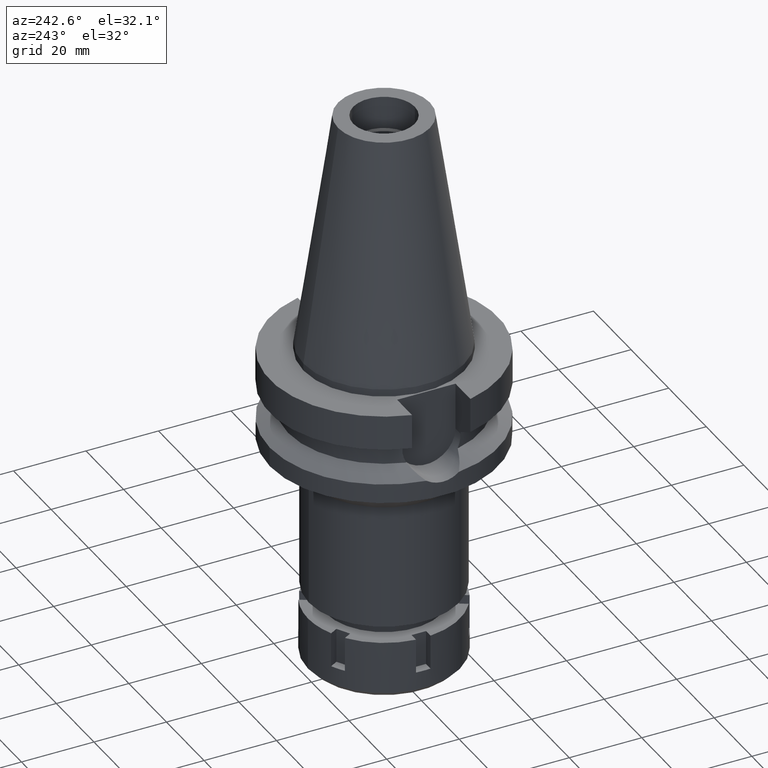
[diagram: clean part render]
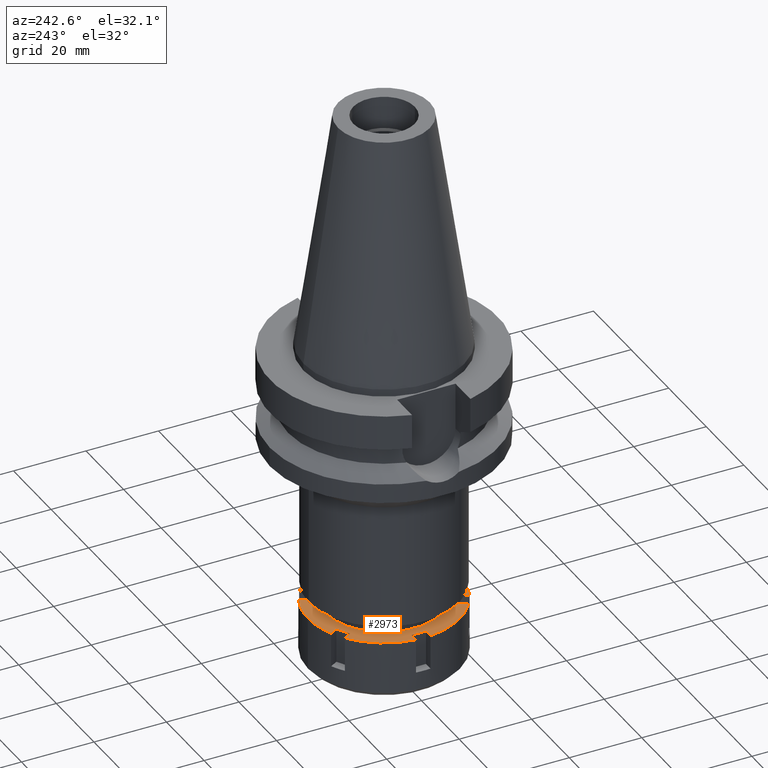
[diagram: same view with one face highlighted and labeled with its STEP entity id]
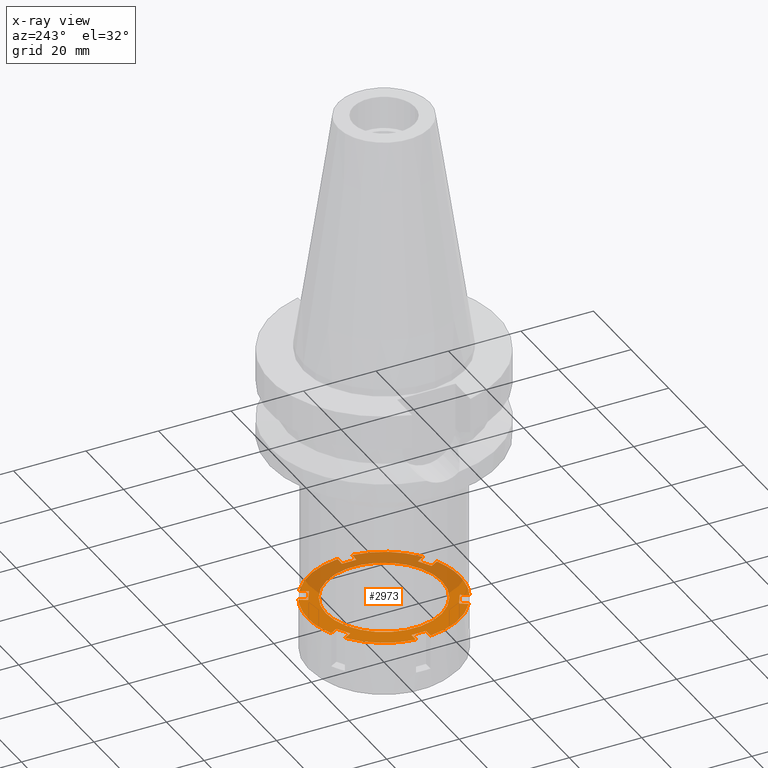
[diagram: x-ray of the same camera — body ghosted, the highlighted face saturated]
A machine part, auxiliary view. The second image highlights one B-rep face of the part: STEP entity #2973.
The next image is the same camera in x-ray: the body ghosted, the highlighted face saturated — about 43% of this face is hidden behind the body in this view.
In plain terms, the highlighted planar face has unit normal (0, 0, -1).
Its self-contained STEP definition (entity closure, byte-faithful):
#2 = LINE ( 'NONE', #493, #2213 ) ;
#9 = DIRECTION ( 'NONE',  ( -0.8660254037844541397, -0.4999999999999731326, 0.0000000000000000000 ) ) ;
#16 = CARTESIAN_POINT ( 'NONE',  ( -8.720221672615000585, -19.10386699022999935, 0.0000000000000000000 ) ) ;
#35 = VECTOR ( 'NONE', #3082, 1000.000000000000114 ) ;
#36 = EDGE_CURVE ( 'NONE', #1944, #2217, #3201, .T. ) ;
#58 = DIRECTION ( 'NONE',  ( 0.5000000000000169864, 0.8660254037844288266, 0.0000000000000000000 ) ) ;
#83 = EDGE_CURVE ( 'NONE', #3198, #2661, #1051, .T. ) ;
#91 = ORIENTED_EDGE ( 'NONE', *, *, #1835, .F. ) ;
#96 = CIRCLE ( 'NONE', #620, 21.00000000000000711 ) ;
#98 = EDGE_CURVE ( 'NONE', #2619, #3386, #301, .T. ) ;
#100 = CARTESIAN_POINT ( 'NONE',  ( 0.0000000000000000000, 0.0000000000000000000, 0.0000000000000000000 ) ) ;
#144 = CARTESIAN_POINT ( 'NONE',  ( -12.18432328774999895, 17.10386699022999935, 0.0000000000000000000 ) ) ;
#195 = DIRECTION ( 'NONE',  ( 0.0000000000000000000, 0.0000000000000000000, -1.000000000000000000 ) ) ;
#199 = CARTESIAN_POINT ( 'NONE',  ( -12.18432328774999895, -17.10386699022999935, 0.0000000000000000000 ) ) ;
#207 = DIRECTION ( 'NONE',  ( 0.0000000000000000000, 1.000000000000000000, 0.0000000000000000000 ) ) ;
#209 = CIRCLE ( 'NONE', #2578, 20.99999999999999645 ) ;
#287 = DIRECTION ( 'NONE',  ( 0.0000000000000000000, 0.0000000000000000000, -1.000000000000000000 ) ) ;
#299 = EDGE_CURVE ( 'NONE', #2487, #3056, #2763, .T. ) ;
#301 = LINE ( 'NONE', #1845, #1575 ) ;
#305 = CARTESIAN_POINT ( 'NONE',  ( 0.0000000000000000000, 0.0000000000000000000, 0.0000000000000000000 ) ) ;
#322 = DIRECTION ( 'NONE',  ( 0.0000000000000000000, -1.000000000000000000, 0.0000000000000000000 ) ) ;
#385 = VERTEX_POINT ( 'NONE', #2515 ) ;
#392 = DIRECTION ( 'NONE',  ( -0.4152486510768949035, 0.9097079519157886818, 0.0000000000000000000 ) ) ;
#409 = ORIENTED_EDGE ( 'NONE', *, *, #872, .F. ) ;
#425 = ORIENTED_EDGE ( 'NONE', *, *, #1021, .F. ) ;
#458 = ORIENTED_EDGE ( 'NONE', *, *, #660, .F. ) ;
#465 = CARTESIAN_POINT ( 'NONE',  ( 8.720221672615000585, 19.10386699022999935, 0.0000000000000000000 ) ) ;
#471 = DIRECTION ( 'NONE',  ( -1.000000000000000000, 4.090826397637000243E-14, 0.0000000000000000000 ) ) ;
#493 = CARTESIAN_POINT ( 'NONE',  ( 7.517949192430999794, -17.02146997000999917, 0.0000000000000000000 ) ) ;
#505 = EDGE_LOOP ( 'NONE', ( #91, #1543 ) ) ;
#533 = DIRECTION ( 'NONE',  ( -1.000000000000000000, -4.100060768738000191E-14, 0.0000000000000000000 ) ) ;
#559 = VECTOR ( 'NONE', #1813, 1000.000000000000114 ) ;
#564 = DIRECTION ( 'NONE',  ( 0.4999999999997049027, -0.8660254037846089048, 0.0000000000000000000 ) ) ;
#575 = CARTESIAN_POINT ( 'NONE',  ( -10.98205080757000118, 15.02146997001000095, 0.0000000000000000000 ) ) ;
#590 = DIRECTION ( 'NONE',  ( 0.0000000000000000000, 1.000000000000000000, 0.0000000000000000000 ) ) ;
#592 = ORIENTED_EDGE ( 'NONE', *, *, #2823, .F. ) ;
#608 = VERTEX_POINT ( 'NONE', #1655 ) ;
#620 = AXIS2_PLACEMENT_3D ( 'NONE', #1990, #3111, #3085 ) ;
#639 = EDGE_CURVE ( 'NONE', #1173, #2046, #1394, .T. ) ;
#660 = EDGE_CURVE ( 'NONE', #3525, #1653, #2639, .T. ) ;
#682 = CARTESIAN_POINT ( 'NONE',  ( -20.90454496036999998, 2.000000000000000000, 0.0000000000000000000 ) ) ;
#701 = CARTESIAN_POINT ( 'NONE',  ( 8.720221672615000585, 19.10386699022999935, 0.0000000000000000000 ) ) ;
#734 = VECTOR ( 'NONE', #564, 1000.000000000000114 ) ;
#743 = EDGE_CURVE ( 'NONE', #1214, #2856, #1233, .T. ) ;
#744 = CIRCLE ( 'NONE', #3008, 21.00000000000000000 ) ;
#754 = CARTESIAN_POINT ( 'NONE',  ( -18.50000000000000000, -2.000000000000000000, 0.0000000000000000000 ) ) ;
#765 = VERTEX_POINT ( 'NONE', #199 ) ;
#769 = CARTESIAN_POINT ( 'NONE',  ( 0.0000000000000000000, 16.00000000000000000, 0.0000000000000000000 ) ) ;
#800 = DIRECTION ( 'NONE',  ( 0.5000000000000169864, -0.8660254037844288266, 0.0000000000000000000 ) ) ;
#812 = DIRECTION ( 'NONE',  ( 0.0000000000000000000, 0.0000000000000000000, -1.000000000000000000 ) ) ;
#816 = DIRECTION ( 'NONE',  ( -0.5000000000000169864, 0.8660254037844288266, 0.0000000000000000000 ) ) ;
#827 = CARTESIAN_POINT ( 'NONE',  ( 0.0000000000000000000, -16.00000000000000000, 0.0000000000000000000 ) ) ;
#865 = ORIENTED_EDGE ( 'NONE', *, *, #1157, .F. ) ;
#870 = LINE ( 'NONE', #1987, #35 ) ;
#872 = EDGE_CURVE ( 'NONE', #2046, #970, #2, .T. ) ;
#881 = ORIENTED_EDGE ( 'NONE', *, *, #1426, .F. ) ;
#900 = VERTEX_POINT ( 'NONE', #769 ) ;
#921 = VERTEX_POINT ( 'NONE', #1611 ) ;
#932 = CARTESIAN_POINT ( 'NONE',  ( 18.50000000000000000, 2.000000000000000000, 0.0000000000000000000 ) ) ;
#935 = LINE ( 'NONE', #3376, #1424 ) ;
#942 = VERTEX_POINT ( 'NONE', #575 ) ;
#961 = CARTESIAN_POINT ( 'NONE',  ( 12.18432328774999895, 17.10386699022999935, 0.0000000000000000000 ) ) ;
#970 = VERTEX_POINT ( 'NONE', #2682 ) ;
#1021 = EDGE_CURVE ( 'NONE', #3056, #1214, #744, .T. ) ;
#1033 = CARTESIAN_POINT ( 'NONE',  ( 7.517949192430999794, 17.02146997000999917, 0.0000000000000000000 ) ) ;
#1036 = DIRECTION ( 'NONE',  ( 0.9954545219222313834, -0.09523809523810303213, 0.0000000000000000000 ) ) ;
#1051 = LINE ( 'NONE', #2440, #1299 ) ;
#1122 = ORIENTED_EDGE ( 'NONE', *, *, #2774, .F. ) ;
#1145 = VERTEX_POINT ( 'NONE', #1279 ) ;
#1154 = CARTESIAN_POINT ( 'NONE',  ( -10.98205080757000118, -15.02146997001000095, 0.0000000000000000000 ) ) ;
#1157 = EDGE_CURVE ( 'NONE', #2856, #1944, #935, .T. ) ;
#1170 = DIRECTION ( 'NONE',  ( -0.5000000000000169864, -0.8660254037844288266, 0.0000000000000000000 ) ) ;
#1173 = VERTEX_POINT ( 'NONE', #2890 ) ;
#1185 = CARTESIAN_POINT ( 'NONE',  ( 0.0000000000000000000, 0.0000000000000000000, 0.0000000000000000000 ) ) ;
#1214 = VERTEX_POINT ( 'NONE', #465 ) ;
#1215 = CARTESIAN_POINT ( 'NONE',  ( 18.50000000000000000, 2.000000000000000000, 0.0000000000000000000 ) ) ;
#1228 = CARTESIAN_POINT ( 'NONE',  ( 0.0000000000000000000, -21.00000000000000000, 0.0000000000000000000 ) ) ;
#1233 = LINE ( 'NONE', #701, #3068 ) ;
#1253 = VERTEX_POINT ( 'NONE', #1215 ) ;
#1263 = VERTEX_POINT ( 'NONE', #3123 ) ;
#1270 = FACE_BOUND ( 'NONE', #505, .T. ) ;
#1279 = CARTESIAN_POINT ( 'NONE',  ( -20.90454496036999998, -2.000000000000000000, 0.0000000000000000000 ) ) ;
#1299 = VECTOR ( 'NONE', #533, 1000.000000000000000 ) ;
#1302 = PLANE ( 'NONE',  #1912 ) ;
#1304 = AXIS2_PLACEMENT_3D ( 'NONE', #100, #2814, #392 ) ;
#1359 = VECTOR ( 'NONE', #1764, 1000.000000000000000 ) ;
#1372 = ORIENTED_EDGE ( 'NONE', *, *, #1481, .F. ) ;
#1389 = DIRECTION ( 'NONE',  ( 0.0000000000000000000, -1.000000000000000000, 0.0000000000000000000 ) ) ;
#1394 = LINE ( 'NONE', #1712, #2315 ) ;
#1424 = VECTOR ( 'NONE', #1786, 1000.000000000000114 ) ;
#1426 = EDGE_CURVE ( 'NONE', #765, #1145, #2128, .T. ) ;
#1438 = CARTESIAN_POINT ( 'NONE',  ( -7.517949192430999794, -17.02146997000999917, 0.0000000000000000000 ) ) ;
#1449 = VERTEX_POINT ( 'NONE', #827 ) ;
#1450 = LINE ( 'NONE', #2513, #734 ) ;
#1469 = ORIENTED_EDGE ( 'NONE', *, *, #1976, .T. ) ;
#1478 = EDGE_CURVE ( 'NONE', #1449, #900, #2595, .T. ) ;
#1481 = EDGE_CURVE ( 'NONE', #3481, #2223, #3014, .T. ) ;
#1488 = CARTESIAN_POINT ( 'NONE',  ( -18.50000000000000000, -2.000000000000000000, 0.0000000000000000000 ) ) ;
#1494 = EDGE_CURVE ( 'NONE', #2223, #608, #2190, .T. ) ;
#1543 = ORIENTED_EDGE ( 'NONE', *, *, #1478, .F. ) ;
#1564 = EDGE_CURVE ( 'NONE', #1653, #942, #1450, .T. ) ;
#1574 = ORIENTED_EDGE ( 'NONE', *, *, #1824, .T. ) ;
#1575 = VECTOR ( 'NONE', #1389, 1000.000000000000000 ) ;
#1578 = DIRECTION ( 'NONE',  ( 0.0000000000000000000, -1.000000000000000000, 0.0000000000000000000 ) ) ;
#1592 = ORIENTED_EDGE ( 'NONE', *, *, #743, .F. ) ;
#1611 = CARTESIAN_POINT ( 'NONE',  ( 12.18432328774999895, -17.10386699022999935, 0.0000000000000000000 ) ) ;
#1621 = CARTESIAN_POINT ( 'NONE',  ( -8.720221672615998898, -19.10386699022999935, 0.0000000000000000000 ) ) ;
#1643 = DIRECTION ( 'NONE',  ( 0.0000000000000000000, -1.000000000000000000, 0.0000000000000000000 ) ) ;
#1653 = VERTEX_POINT ( 'NONE', #144 ) ;
#1655 = CARTESIAN_POINT ( 'NONE',  ( -10.98205080757000118, -15.02146997001000095, 0.0000000000000000000 ) ) ;
#1659 = DIRECTION ( 'NONE',  ( -0.4999999999997049027, -0.8660254037846089048, 0.0000000000000000000 ) ) ;
#1702 = VECTOR ( 'NONE', #58, 1000.000000000000114 ) ;
#1712 = CARTESIAN_POINT ( 'NONE',  ( 10.98205080757000118, -15.02146997001000095, 0.0000000000000000000 ) ) ;
#1721 = ORIENTED_EDGE ( 'NONE', *, *, #1840, .T. ) ;
#1735 = EDGE_CURVE ( 'NONE', #1253, #385, #3428, .T. ) ;
#1764 = DIRECTION ( 'NONE',  ( 1.000000000000000000, 4.127763882039999760E-14, 0.0000000000000000000 ) ) ;
#1785 = DIRECTION ( 'NONE',  ( 1.000000000000000000, -3.989248315528999745E-14, 0.0000000000000000000 ) ) ;
#1786 = DIRECTION ( 'NONE',  ( 0.8660254037844541397, -0.4999999999999731326, 0.0000000000000000000 ) ) ;
#1811 = CARTESIAN_POINT ( 'NONE',  ( 0.0000000000000000000, 0.0000000000000000000, 0.0000000000000000000 ) ) ;
#1813 = DIRECTION ( 'NONE',  ( 0.8660254037844541397, 0.4999999999999731326, 0.0000000000000000000 ) ) ;
#1824 = EDGE_CURVE ( 'NONE', #3525, #2619, #2072, .T. ) ;
#1835 = EDGE_CURVE ( 'NONE', #900, #1449, #3350, .T. ) ;
#1840 = EDGE_CURVE ( 'NONE', #3386, #1145, #3393, .T. ) ;
#1845 = CARTESIAN_POINT ( 'NONE',  ( -18.50000000000000000, 2.000000000000000000, 0.0000000000000000000 ) ) ;
#1848 = ORIENTED_EDGE ( 'NONE', *, *, #2565, .F. ) ;
#1887 = LINE ( 'NONE', #1154, #2363 ) ;
#1889 = DIRECTION ( 'NONE',  ( -0.5802058708454290725, -0.8144698566776411575, 0.0000000000000000000 ) ) ;
#1912 = AXIS2_PLACEMENT_3D ( 'NONE', #2099, #3144, #1578 ) ;
#1916 = CARTESIAN_POINT ( 'NONE',  ( -18.50000000000000000, 2.000000000000000000, 0.0000000000000000000 ) ) ;
#1923 = DIRECTION ( 'NONE',  ( 0.0000000000000000000, 1.000000000000000000, 0.0000000000000000000 ) ) ;
#1944 = VERTEX_POINT ( 'NONE', #2229 ) ;
#1976 = EDGE_CURVE ( 'NONE', #2661, #1253, #3321, .T. ) ;
#1987 = CARTESIAN_POINT ( 'NONE',  ( 12.18432328774999895, -17.10386699022999935, 0.0000000000000000000 ) ) ;
#1990 = CARTESIAN_POINT ( 'NONE',  ( 0.0000000000000000000, 0.0000000000000000000, 0.0000000000000000000 ) ) ;
#2013 = EDGE_CURVE ( 'NONE', #608, #765, #1887, .T. ) ;
#2019 = AXIS2_PLACEMENT_3D ( 'NONE', #305, #3498, #322 ) ;
#2046 = VERTEX_POINT ( 'NONE', #2732 ) ;
#2048 = ORIENTED_EDGE ( 'NONE', *, *, #2592, .F. ) ;
#2050 = ORIENTED_EDGE ( 'NONE', *, *, #1564, .F. ) ;
#2072 = LINE ( 'NONE', #682, #1359 ) ;
#2099 = CARTESIAN_POINT ( 'NONE',  ( 0.0000000000000000000, 0.0000000000000000000, 0.0000000000000000000 ) ) ;
#2121 = CARTESIAN_POINT ( 'NONE',  ( 0.0000000000000000000, 0.0000000000000000000, 0.0000000000000000000 ) ) ;
#2123 = ORIENTED_EDGE ( 'NONE', *, *, #98, .T. ) ;
#2128 = CIRCLE ( 'NONE', #2945, 20.99999999999999645 ) ;
#2129 = VECTOR ( 'NONE', #2177, 1000.000000000000114 ) ;
#2159 = CARTESIAN_POINT ( 'NONE',  ( 0.0000000000000000000, 21.00000000000000000, 0.0000000000000000000 ) ) ;
#2165 = CARTESIAN_POINT ( 'NONE',  ( -8.720221672615000585, 19.10386699022999935, 0.0000000000000000000 ) ) ;
#2177 = DIRECTION ( 'NONE',  ( 0.4999999999997049027, 0.8660254037846089048, 0.0000000000000000000 ) ) ;
#2179 = ORIENTED_EDGE ( 'NONE', *, *, #3092, .F. ) ;
#2190 = LINE ( 'NONE', #1438, #3396 ) ;
#2193 = ORIENTED_EDGE ( 'NONE', *, *, #36, .F. ) ;
#2203 = DIRECTION ( 'NONE',  ( 0.5802058708454290725, 0.8144698566776411575, 0.0000000000000000000 ) ) ;
#2213 = VECTOR ( 'NONE', #800, 1000.000000000000114 ) ;
#2217 = VERTEX_POINT ( 'NONE', #961 ) ;
#2223 = VERTEX_POINT ( 'NONE', #2528 ) ;
#2228 = ORIENTED_EDGE ( 'NONE', *, *, #1735, .T. ) ;
#2229 = CARTESIAN_POINT ( 'NONE',  ( 10.98205080757000118, 15.02146997001000095, 0.0000000000000000000 ) ) ;
#2237 = CARTESIAN_POINT ( 'NONE',  ( 20.90454496036999998, -2.000000000000000000, 0.0000000000000000000 ) ) ;
#2270 = DIRECTION ( 'NONE',  ( -0.8660254037844541397, 0.4999999999999731326, 0.0000000000000000000 ) ) ;
#2294 = ORIENTED_EDGE ( 'NONE', *, *, #639, .F. ) ;
#2306 = CIRCLE ( 'NONE', #2019, 21.00000000000000000 ) ;
#2314 = VECTOR ( 'NONE', #1785, 1000.000000000000000 ) ;
#2315 = VECTOR ( 'NONE', #9, 1000.000000000000114 ) ;
#2335 = EDGE_CURVE ( 'NONE', #3198, #921, #2992, .T. ) ;
#2363 = VECTOR ( 'NONE', #1659, 1000.000000000000114 ) ;
#2382 = CARTESIAN_POINT ( 'NONE',  ( 0.0000000000000000000, 0.0000000000000000000, 0.0000000000000000000 ) ) ;
#2400 = ORIENTED_EDGE ( 'NONE', *, *, #1494, .F. ) ;
#2436 = CARTESIAN_POINT ( 'NONE',  ( 0.0000000000000000000, 0.0000000000000000000, 0.0000000000000000000 ) ) ;
#2440 = CARTESIAN_POINT ( 'NONE',  ( 20.90454496036999998, -2.000000000000000000, 0.0000000000000000000 ) ) ;
#2487 = VERTEX_POINT ( 'NONE', #2165 ) ;
#2513 = CARTESIAN_POINT ( 'NONE',  ( -12.18432328774999895, 17.10386699022999935, 0.0000000000000000000 ) ) ;
#2515 = CARTESIAN_POINT ( 'NONE',  ( 20.90454496036999998, 2.000000000000000000, 0.0000000000000000000 ) ) ;
#2522 = CARTESIAN_POINT ( 'NONE',  ( 18.50000000000000000, -2.000000000000000000, 0.0000000000000000000 ) ) ;
#2526 = VECTOR ( 'NONE', #1923, 1000.000000000000000 ) ;
#2528 = CARTESIAN_POINT ( 'NONE',  ( -7.517949192430999794, -17.02146997000999917, 0.0000000000000000000 ) ) ;
#2565 = EDGE_CURVE ( 'NONE', #3414, #3481, #2306, .T. ) ;
#2570 = ORIENTED_EDGE ( 'NONE', *, *, #2013, .F. ) ;
#2578 = AXIS2_PLACEMENT_3D ( 'NONE', #2713, #287, #2203 ) ;
#2581 = ORIENTED_EDGE ( 'NONE', *, *, #3240, .F. ) ;
#2592 = EDGE_CURVE ( 'NONE', #2217, #385, #209, .T. ) ;
#2595 = CIRCLE ( 'NONE', #3504, 16.00000000000000000 ) ;
#2619 = VERTEX_POINT ( 'NONE', #1916 ) ;
#2639 = CIRCLE ( 'NONE', #2936, 20.99999999999999289 ) ;
#2661 = VERTEX_POINT ( 'NONE', #2522 ) ;
#2667 = CARTESIAN_POINT ( 'NONE',  ( 10.98205080757000118, 15.02146997001000095, 0.0000000000000000000 ) ) ;
#2682 = CARTESIAN_POINT ( 'NONE',  ( 8.720221672615000585, -19.10386699022999935, 0.0000000000000000000 ) ) ;
#2689 = CARTESIAN_POINT ( 'NONE',  ( 18.50000000000000000, -2.000000000000000000, 0.0000000000000000000 ) ) ;
#2703 = VECTOR ( 'NONE', #471, 1000.000000000000000 ) ;
#2713 = CARTESIAN_POINT ( 'NONE',  ( 0.0000000000000000000, 0.0000000000000000000, 0.0000000000000000000 ) ) ;
#2732 = CARTESIAN_POINT ( 'NONE',  ( 7.517949192430999794, -17.02146997000999917, 0.0000000000000000000 ) ) ;
#2763 = CIRCLE ( 'NONE', #1304, 21.00000000000000711 ) ;
#2774 = EDGE_CURVE ( 'NONE', #970, #3414, #96, .T. ) ;
#2811 = ORIENTED_EDGE ( 'NONE', *, *, #83, .T. ) ;
#2814 = DIRECTION ( 'NONE',  ( 0.0000000000000000000, 0.0000000000000000000, -1.000000000000000000 ) ) ;
#2823 = EDGE_CURVE ( 'NONE', #942, #1263, #2896, .T. ) ;
#2843 = DIRECTION ( 'NONE',  ( 0.0000000000000000000, 0.0000000000000000000, 1.000000000000000000 ) ) ;
#2856 = VERTEX_POINT ( 'NONE', #1033 ) ;
#2890 = CARTESIAN_POINT ( 'NONE',  ( 10.98205080757000118, -15.02146997001000095, 0.0000000000000000000 ) ) ;
#2896 = LINE ( 'NONE', #3182, #559 ) ;
#2924 = CARTESIAN_POINT ( 'NONE',  ( 0.0000000000000000000, 0.0000000000000000000, 0.0000000000000000000 ) ) ;
#2936 = AXIS2_PLACEMENT_3D ( 'NONE', #1185, #3086, #3047 ) ;
#2945 = AXIS2_PLACEMENT_3D ( 'NONE', #2382, #812, #1889 ) ;
#2964 = ORIENTED_EDGE ( 'NONE', *, *, #299, .F. ) ;
#2973 = ADVANCED_FACE ( 'NONE', ( #3450, #1270 ), #1302, .F. ) ;
#2992 = CIRCLE ( 'NONE', #3453, 20.99999999999999289 ) ;
#3008 = AXIS2_PLACEMENT_3D ( 'NONE', #2436, #3022, #590 ) ;
#3011 = EDGE_LOOP ( 'NONE', ( #425, #2964, #2179, #592, #2050, #458, #1574, #2123, #1721, #881, #2570, #2400, #1372, #1848, #1122, #409, #2294, #2581, #3366, #2811, #1469, #2228, #2048, #2193, #865, #1592 ) ) ;
#3014 = LINE ( 'NONE', #16, #1702 ) ;
#3022 = DIRECTION ( 'NONE',  ( 0.0000000000000000000, 0.0000000000000000000, -1.000000000000000000 ) ) ;
#3047 = DIRECTION ( 'NONE',  ( -0.9954545219222313834, 0.09523809523810303213, 0.0000000000000000000 ) ) ;
#3053 = DIRECTION ( 'NONE',  ( 0.0000000000000000000, 0.0000000000000000000, 1.000000000000000000 ) ) ;
#3056 = VERTEX_POINT ( 'NONE', #2159 ) ;
#3068 = VECTOR ( 'NONE', #1170, 1000.000000000000114 ) ;
#3082 = DIRECTION ( 'NONE',  ( -0.4999999999997049027, 0.8660254037846089048, 0.0000000000000000000 ) ) ;
#3085 = DIRECTION ( 'NONE',  ( 0.4152486510768949035, -0.9097079519157886818, 0.0000000000000000000 ) ) ;
#3086 = DIRECTION ( 'NONE',  ( 0.0000000000000000000, 0.0000000000000000000, -1.000000000000000000 ) ) ;
#3092 = EDGE_CURVE ( 'NONE', #1263, #2487, #3496, .T. ) ;
#3111 = DIRECTION ( 'NONE',  ( 0.0000000000000000000, 0.0000000000000000000, -1.000000000000000000 ) ) ;
#3123 = CARTESIAN_POINT ( 'NONE',  ( -7.517949192430999794, 17.02146997000999917, 0.0000000000000000000 ) ) ;
#3144 = DIRECTION ( 'NONE',  ( 0.0000000000000000000, 0.0000000000000000000, -1.000000000000000000 ) ) ;
#3164 = VECTOR ( 'NONE', #816, 1000.000000000000114 ) ;
#3182 = CARTESIAN_POINT ( 'NONE',  ( -10.98205080757000118, 15.02146997001000095, 0.0000000000000000000 ) ) ;
#3198 = VERTEX_POINT ( 'NONE', #2237 ) ;
#3201 = LINE ( 'NONE', #2667, #2129 ) ;
#3214 = CARTESIAN_POINT ( 'NONE',  ( -7.517949192430999794, 17.02146997000999917, 0.0000000000000000000 ) ) ;
#3240 = EDGE_CURVE ( 'NONE', #921, #1173, #870, .T. ) ;
#3261 = CARTESIAN_POINT ( 'NONE',  ( -20.90454496036999998, 2.000000000000000000, 0.0000000000000000000 ) ) ;
#3321 = LINE ( 'NONE', #2689, #2526 ) ;
#3350 = CIRCLE ( 'NONE', #3457, 16.00000000000000000 ) ;
#3366 = ORIENTED_EDGE ( 'NONE', *, *, #2335, .F. ) ;
#3376 = CARTESIAN_POINT ( 'NONE',  ( 7.517949192430999794, 17.02146997000999917, 0.0000000000000000000 ) ) ;
#3386 = VERTEX_POINT ( 'NONE', #1488 ) ;
#3393 = LINE ( 'NONE', #754, #2703 ) ;
#3396 = VECTOR ( 'NONE', #2270, 1000.000000000000114 ) ;
#3414 = VERTEX_POINT ( 'NONE', #1228 ) ;
#3428 = LINE ( 'NONE', #932, #2314 ) ;
#3450 = FACE_OUTER_BOUND ( 'NONE', #3011, .T. ) ;
#3453 = AXIS2_PLACEMENT_3D ( 'NONE', #2924, #195, #1036 ) ;
#3457 = AXIS2_PLACEMENT_3D ( 'NONE', #1811, #2843, #207 ) ;
#3481 = VERTEX_POINT ( 'NONE', #1621 ) ;
#3496 = LINE ( 'NONE', #3214, #3164 ) ;
#3498 = DIRECTION ( 'NONE',  ( 0.0000000000000000000, 0.0000000000000000000, -1.000000000000000000 ) ) ;
#3504 = AXIS2_PLACEMENT_3D ( 'NONE', #2121, #3053, #1643 ) ;
#3525 = VERTEX_POINT ( 'NONE', #3261 ) ;